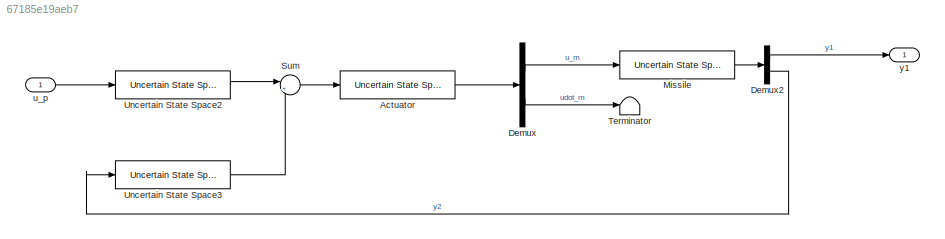
MODEL slx_67185e19aeb7
KIND model
CONFIG AbsTol = auto
CONFIG EnableMultiTasking = off
CONFIG FixedStep = auto
CONFIG MaxStep = auto
CONFIG MinStep = auto
CONFIG RelTol = 1e-3
CONFIG SampleTimeConstraint = Unconstrained
CONFIG SolverName = VariableStepAuto
CONFIG StartTime = 0.0
CONFIG StopTime = 10.0
BLOCK [Reference] Actuator  REF=RCTblocks/Uncertain State Space
  SourceBlock = RCTblocks/Uncertain State Space
  SourceType = Uncertain State Space Block
  Tag = USS
BLOCK [Demux] Demux
  Outputs = 2
BLOCK [Demux] Demux2
  Outputs = 2
BLOCK [Reference] Missile  REF=RCTblocks/Uncertain State Space
  SourceBlock = RCTblocks/Uncertain State Space
  SourceType = Uncertain State Space Block
  Tag = USS
BLOCK [Sum] Sum
  Inputs = |+-
BLOCK [Terminator] Terminator
BLOCK [Reference] Uncertain State Space2  REF=RCTblocks/Uncertain State Space
  SourceBlock = RCTblocks/Uncertain State Space
  SourceType = Uncertain State Space Block
  Tag = USS
BLOCK [Reference] Uncertain State Space3  REF=RCTblocks/Uncertain State Space
  SourceBlock = RCTblocks/Uncertain State Space
  SourceType = Uncertain State Space Block
  Tag = USS
BLOCK [Inport] u_p
BLOCK [Outport] y1
LINE Actuator:1 -> Demux:1
LINE Demux2:1 -> y1:1
LINE Demux2:2 -> Uncertain State Space3:1
LINE Demux:1 -> Missile:1
LINE Demux:2 -> Terminator:1
LINE Missile:1 -> Demux2:1
LINE Sum:1 -> Actuator:1
LINE Uncertain State Space2:1 -> Sum:1
LINE Uncertain State Space3:1 -> Sum:2
LINE u_p:1 -> Uncertain State Space2:1
